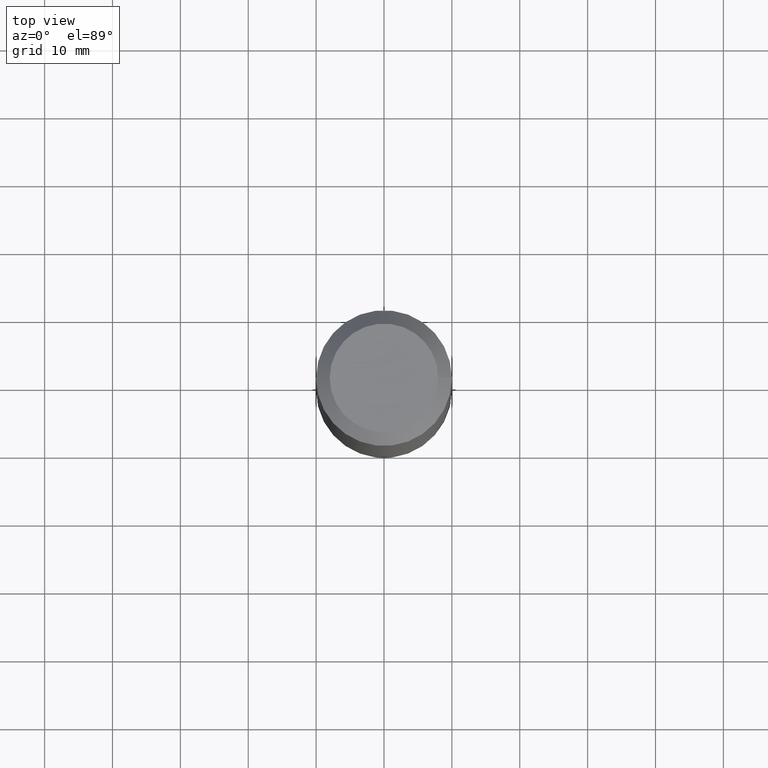
[diagram: clean part render]
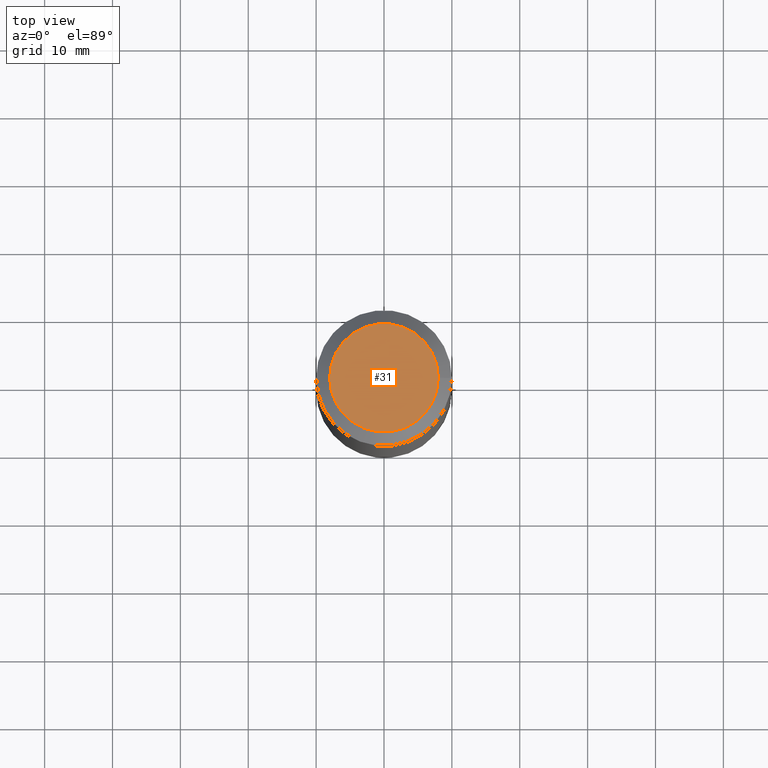
[diagram: same view with one face highlighted and labeled with its STEP entity id]
A machine part, top view. The second image highlights one B-rep face of the part: STEP entity #31.
In plain terms, the highlighted planar face has unit normal (0, 0, 1).
Its self-contained STEP definition (entity closure, byte-faithful):
#10 = FACE_OUTER_BOUND ( 'NONE', #208, .T. ) ;
#14 = CARTESIAN_POINT ( 'NONE',  ( 7.999999999999992895, 0.0000000000000000000, -5.586370142149008320E-14 ) ) ;
#19 = ORIENTED_EDGE ( 'NONE', *, *, #175, .T. ) ;
#29 = DIRECTION ( 'NONE',  ( 6.982962677686266711E-15, 0.0000000000000000000, 1.000000000000000000 ) ) ;
#31 = ADVANCED_FACE ( 'NONE', ( #10 ), #167, .T. ) ;
#32 = VERTEX_POINT ( 'NONE', #14 ) ;
#33 = AXIS2_PLACEMENT_3D ( 'NONE', #110, #131, #75 ) ;
#57 = CIRCLE ( 'NONE', #74, 7.999999999999992895 ) ;
#74 = AXIS2_PLACEMENT_3D ( 'NONE', #117, #29, #96 ) ;
#75 = DIRECTION ( 'NONE',  ( 1.000000000000000000, 0.0000000000000000000, -6.982962677686266711E-15 ) ) ;
#96 = DIRECTION ( 'NONE',  ( 1.000000000000000000, 0.0000000000000000000, -6.982962677686266711E-15 ) ) ;
#110 = CARTESIAN_POINT ( 'NONE',  ( -3.326488793394202502E-30, 0.0000000000000000000, -4.763721284124635757E-16 ) ) ;
#117 = CARTESIAN_POINT ( 'NONE',  ( 0.0000000000000000000, 0.0000000000000000000, 0.0000000000000000000 ) ) ;
#131 = DIRECTION ( 'NONE',  ( 6.982962677686266711E-15, 0.0000000000000000000, 1.000000000000000000 ) ) ;
#167 = PLANE ( 'NONE',  #33 ) ;
#175 = EDGE_CURVE ( 'NONE', #32, #32, #57, .T. ) ;
#208 = EDGE_LOOP ( 'NONE', ( #19 ) ) ;